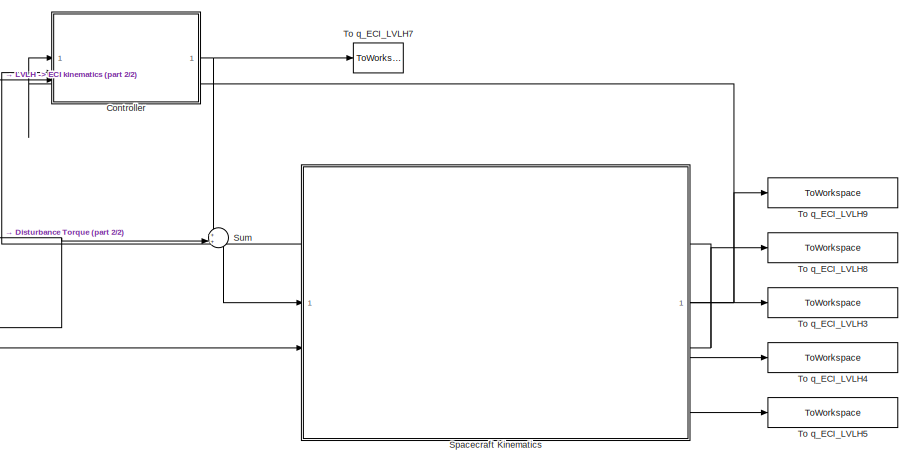
[diagram: root canvas - part 1/2, right side, full height]
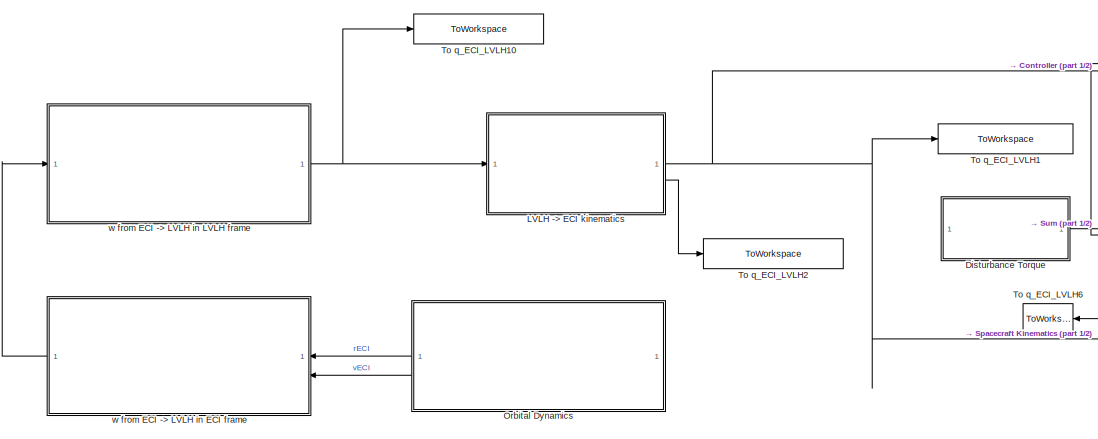
[diagram: root canvas - part 2/2, left side, full height]
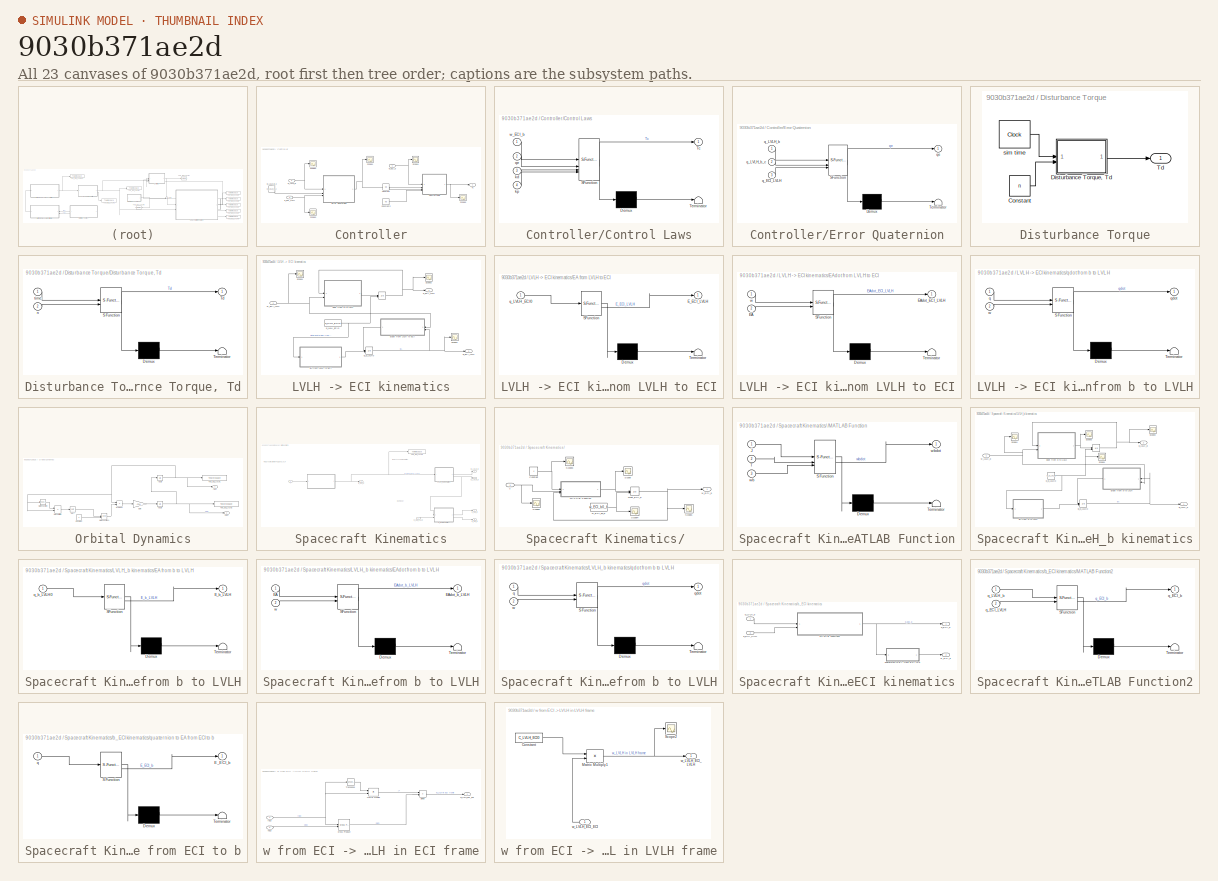
[diagram: thumbnail index - all 23 canvases of the model, root first then tree order]
MODEL slx_9030b371ae2d
KIND model
CONFIG AbsTol = auto
CONFIG EnableMultiTasking = off
CONFIG FixedStep = auto
CONFIG MaxStep = auto
CONFIG MinStep = auto
CONFIG RelTol = 1e-3
CONFIG SampleTimeConstraint = Unconstrained
CONFIG SolverName = VariableStepAuto
CONFIG StartTime = 0.0
CONFIG StopTime = 100
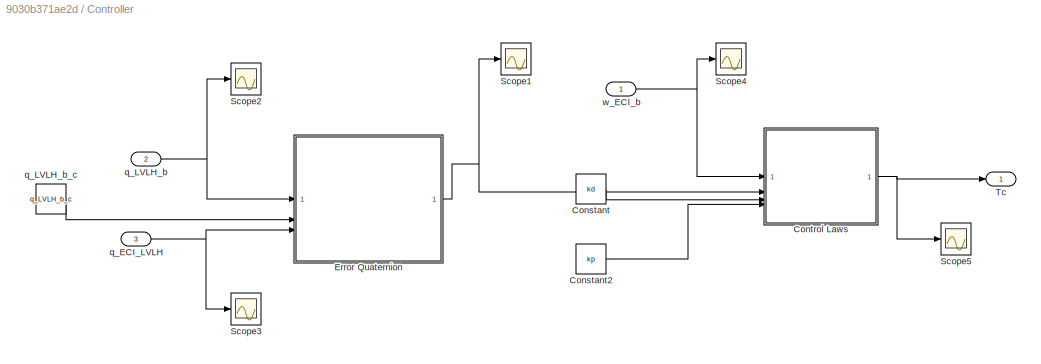
BLOCK [SubSystem] Controller
BLOCK [Constant] Controller/Constant
  Value = kd
BLOCK [Constant] Controller/Constant2
  Value = kp
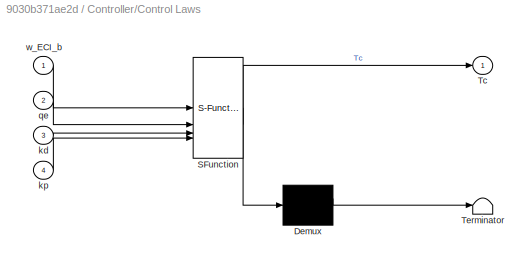
BLOCK [SubSystem] Controller/Control Laws
  ErrorFcn = Stateflow.Translate.translate
  PermitHierarchicalResolution = ExplicitOnly
  SFBlockType = MATLAB Function
  TreatAsAtomicUnit = on
BLOCK [Demux] Controller/Control Laws/ Demux 
  Outputs = 1
BLOCK [S-Function] Controller/Control Laws/ SFunction 
  EnableBusSupport = on
  FunctionName = sf_sfun
  PortCounts = [4 2]
  SFcnIsStateOwnerBlock = off
  SFunctionDeploymentMode = off
  Tag = Stateflow S-Function 10
BLOCK [Terminator] Controller/Control Laws/ Terminator 
BLOCK [Outport] Controller/Control Laws/Tc
BLOCK [Inport] Controller/Control Laws/kd
  Port = 3
BLOCK [Inport] Controller/Control Laws/kp
  Port = 4
BLOCK [Inport] Controller/Control Laws/qe
  Port = 2
BLOCK [Inport] Controller/Control Laws/w_ECI_b
BLOCK [SubSystem] Controller/Error Quaternion
  ErrorFcn = Stateflow.Translate.translate
  PermitHierarchicalResolution = ExplicitOnly
  SFBlockType = MATLAB Function
  TreatAsAtomicUnit = on
BLOCK [Demux] Controller/Error Quaternion/ Demux 
  Outputs = 1
BLOCK [S-Function] Controller/Error Quaternion/ SFunction 
  EnableBusSupport = on
  FunctionName = sf_sfun
  PortCounts = [3 2]
  SFcnIsStateOwnerBlock = off
  SFunctionDeploymentMode = off
  Tag = Stateflow S-Function 5
BLOCK [Terminator] Controller/Error Quaternion/ Terminator 
BLOCK [Inport] Controller/Error Quaternion/q_ECI_LVLH
  Port = 3
BLOCK [Inport] Controller/Error Quaternion/q_LVLH_b
BLOCK [Inport] Controller/Error Quaternion/q_LVLH_b_c
  Port = 2
BLOCK [Outport] Controller/Error Quaternion/qe
BLOCK [Scope] Controller/Scope1
  Floating = off
  NumInputPorts = 1
  ScopeSpecificationString = Simulink.scopes.TimeScopeBlockCfg('CurrentConfiguration', extmgr.ConfigurationSet(extmgr.Configuration('Core','General UI',true),extmgr.Configuration('Core','Source UI',true),extmgr.Configuration('Sources','WiredSimulink',true,'DataLoggingVariableName','ScopeData4'),extmgr.Configuration('Visuals','Time Domain',true,'SerializedDisplays',{struct('MinYLimReal','-0.67557','MaxYLimReal','1.18582','YLab...<+1630ch>
BLOCK [Scope] Controller/Scope2
  Floating = off
  NumInputPorts = 1
  ScopeSpecificationString = Simulink.scopes.TimeScopeBlockCfg('CurrentConfiguration', extmgr.ConfigurationSet(extmgr.Configuration('Core','General UI',true),extmgr.Configuration('Core','Source UI',true),extmgr.Configuration('Sources','WiredSimulink',true,'DataLoggingVariableName','ScopeData10'),extmgr.Configuration('Visuals','Time Domain',true,'SerializedDisplays',{struct('MinYLimReal','-0.18814','MaxYLimReal','1.13241','YLa...<+1580ch>
BLOCK [Scope] Controller/Scope3
  Floating = off
  NumInputPorts = 1
  ScopeSpecificationString = Simulink.scopes.TimeScopeBlockCfg('CurrentConfiguration', extmgr.ConfigurationSet(extmgr.Configuration('Core','General UI',true),extmgr.Configuration('Core','Source UI',true),extmgr.Configuration('Sources','WiredSimulink',true,'DataLoggingVariableName','ScopeData11'),extmgr.Configuration('Visuals','Time Domain',true,'SerializedDisplays',{struct('MinYLimReal','-0.62727','MaxYLimReal','0.62727','YLa...<+1691ch>
BLOCK [Scope] Controller/Scope4
  Floating = off
  NumInputPorts = 1
  ScopeSpecificationString = Simulink.scopes.TimeScopeBlockCfg('CurrentConfiguration', extmgr.ConfigurationSet(extmgr.Configuration('Core','General UI',true),extmgr.Configuration('Core','Source UI',true),extmgr.Configuration('Sources','WiredSimulink',true,'DataLoggingVariableName','ScopeData16'),extmgr.Configuration('Visuals','Time Domain',true,'SerializedDisplays',{struct('MinYLimReal','-0.31837','MaxYLimReal','0.2266','YLab...<+1582ch>
BLOCK [Scope] Controller/Scope5
  Floating = off
  NumInputPorts = 1
  ScopeSpecificationString = Simulink.scopes.TimeScopeBlockCfg('CurrentConfiguration', extmgr.ConfigurationSet(extmgr.Configuration('Core','General UI',true),extmgr.Configuration('Core','Source UI',true),extmgr.Configuration('Sources','WiredSimulink',true,'DataLoggingVariableName','ScopeData3'),extmgr.Configuration('Visuals','Time Domain',true,'SerializedDisplays',{struct('MinYLimReal','-577.09455','MaxYLimReal','273.18783','...<+1592ch>
BLOCK [Outport] Controller/Tc
BLOCK [Inport] Controller/q_ECI_LVLH
  Port = 3
BLOCK [Inport] Controller/q_LVLH_b
  Port = 2
BLOCK [Constant] Controller/q_LVLH_b_c
  Value = q_LVLH_b_c
BLOCK [Inport] Controller/w_ECI_b
BLOCK [SubSystem] Disturbance Torque
BLOCK [Constant] Disturbance Torque/Constant
  Value = n
BLOCK [SubSystem] Disturbance Torque/Disturbance Torque, Td
  ErrorFcn = Stateflow.Translate.translate
  LibrarySourceBlock = simulink/User-Defined\nFunctions/MATLAB Function
  PermitHierarchicalResolution = ExplicitOnly
  SFBlockType = MATLAB Function
  TreatAsAtomicUnit = on
BLOCK [Demux] Disturbance Torque/Disturbance Torque, Td/ Demux 
  Outputs = 1
BLOCK [S-Function] Disturbance Torque/Disturbance Torque, Td/ SFunction 
  EnableBusSupport = on
  FunctionName = sf_sfun
  PortCounts = [2 2]
  SFcnIsStateOwnerBlock = off
  SFunctionDeploymentMode = off
  Tag = Stateflow S-Function 4
BLOCK [Terminator] Disturbance Torque/Disturbance Torque, Td/ Terminator 
BLOCK [Outport] Disturbance Torque/Disturbance Torque, Td/Td
BLOCK [Inport] Disturbance Torque/Disturbance Torque, Td/n
  Port = 2
BLOCK [Inport] Disturbance Torque/Disturbance Torque, Td/time
BLOCK [Outport] Disturbance Torque/Td
BLOCK [Clock] Disturbance Torque/sim time
  DisplayTime = on
BLOCK [SubSystem] LVLH -> ECI kinematics
BLOCK [Integrator] LVLH -> ECI kinematics/ 
  InitialCondition = q_b_LVLH0
  InitialConditionSource = external
BLOCK [SubSystem] LVLH -> ECI kinematics/EA from LVLH to ECI
  ErrorFcn = Stateflow.Translate.translate
  LibrarySourceBlock = simulink/User-Defined\nFunctions/MATLAB Function
  PermitHierarchicalResolution = ExplicitOnly
  SFBlockType = MATLAB Function
  TreatAsAtomicUnit = on
BLOCK [Demux] LVLH -> ECI kinematics/EA from LVLH to ECI/ Demux 
  Outputs = 1
BLOCK [S-Function] LVLH -> ECI kinematics/EA from LVLH to ECI/ SFunction 
  EnableBusSupport = on
  FunctionName = sf_sfun
  PortCounts = [1 2]
  SFcnIsStateOwnerBlock = off
  SFunctionDeploymentMode = off
  Tag = Stateflow S-Function 3
BLOCK [Terminator] LVLH -> ECI kinematics/EA from LVLH to ECI/ Terminator 
BLOCK [Outport] LVLH -> ECI kinematics/EA from LVLH to ECI/E_ECI_LVLH
BLOCK [Inport] LVLH -> ECI kinematics/EA from LVLH to ECI/q_LVLH_ECI0
BLOCK [SubSystem] LVLH -> ECI kinematics/EAdot from LVLH to ECI
  ErrorFcn = Stateflow.Translate.translate
  LibrarySourceBlock = simulink/User-Defined\nFunctions/MATLAB Function
  PermitHierarchicalResolution = ExplicitOnly
  SFBlockType = MATLAB Function
  TreatAsAtomicUnit = on
BLOCK [Demux] LVLH -> ECI kinematics/EAdot from LVLH to ECI/ Demux 
  Outputs = 1
BLOCK [S-Function] LVLH -> ECI kinematics/EAdot from LVLH to ECI/ SFunction 
  EnableBusSupport = on
  FunctionName = sf_sfun
  PortCounts = [2 2]
  SFcnIsStateOwnerBlock = off
  SFunctionDeploymentMode = off
  Tag = Stateflow S-Function 7
BLOCK [Terminator] LVLH -> ECI kinematics/EAdot from LVLH to ECI/ Terminator 
BLOCK [Inport] LVLH -> ECI kinematics/EAdot from LVLH to ECI/EA
  Port = 2
BLOCK [Outport] LVLH -> ECI kinematics/EAdot from LVLH to ECI/EAdot_ECI_LVLH
BLOCK [Inport] LVLH -> ECI kinematics/EAdot from LVLH to ECI/w
BLOCK [Outport] LVLH -> ECI kinematics/E_ECI_LVLH
  Port = 2
BLOCK [Integrator] LVLH -> ECI kinematics/E_b_LVLH0
  InitialCondition = E_b_LVLH0
  InitialConditionSource = external
BLOCK [Scope] LVLH -> ECI kinematics/Scope1
  Floating = off
  NumInputPorts = 1
  ScopeSpecificationString = Simulink.scopes.TimeScopeBlockCfg('CurrentConfiguration', extmgr.ConfigurationSet(extmgr.Configuration('Core','General UI',true),extmgr.Configuration('Core','Source UI',true),extmgr.Configuration('Sources','WiredSimulink',true,'DataLoggingVariableName','ScopeData2'),extmgr.Configuration('Visuals','Time Domain',true,'SerializedDisplays',{struct('MinYLimReal','-0.000082','MaxYLimReal','0.000009','YL...<+1438ch>
BLOCK [Scope] LVLH -> ECI kinematics/Scope2
  Floating = off
  NumInputPorts = 1
  ScopeSpecificationString = Simulink.scopes.TimeScopeBlockCfg('CurrentConfiguration', extmgr.ConfigurationSet(extmgr.Configuration('Core','General UI',true),extmgr.Configuration('Core','Source UI',true),extmgr.Configuration('Sources','WiredSimulink',true,'DataLoggingVariableName','ScopeData2'),extmgr.Configuration('Visuals','Time Domain',true,'SerializedDisplays',{struct('MinYLimReal','-0.70529','MaxYLimReal','0.70529','YLab...<+1434ch>
BLOCK [Scope] LVLH -> ECI kinematics/Scope3
  Floating = off
  NumInputPorts = 1
  ScopeSpecificationString = Simulink.scopes.TimeScopeBlockCfg('CurrentConfiguration', extmgr.ConfigurationSet(extmgr.Configuration('Core','General UI',true),extmgr.Configuration('Core','Source UI',true),extmgr.Configuration('Sources','WiredSimulink',true,'DataLoggingVariableName','ScopeData3'),extmgr.Configuration('Visuals','Time Domain',true,'SerializedDisplays',{struct('MinYLimReal','-1.99812','MaxYLimReal','2.27513','YLab...<+1406ch>
BLOCK [Outport] LVLH -> ECI kinematics/q_ECI_LVLH
BLOCK [Constant] LVLH -> ECI kinematics/q_LVLH_ECI0
  Value = q_LVLH_ECI0
BLOCK [SubSystem] LVLH -> ECI kinematics/qdot from b to LVLH
  ErrorFcn = Stateflow.Translate.translate
  LibrarySourceBlock = simulink/User-Defined\nFunctions/MATLAB Function
  PermitHierarchicalResolution = ExplicitOnly
  SFBlockType = MATLAB Function
  TreatAsAtomicUnit = on
BLOCK [Demux] LVLH -> ECI kinematics/qdot from b to LVLH/ Demux 
  Outputs = 1
BLOCK [S-Function] LVLH -> ECI kinematics/qdot from b to LVLH/ SFunction 
  EnableBusSupport = on
  FunctionName = sf_sfun
  PortCounts = [2 2]
  SFcnIsStateOwnerBlock = off
  SFunctionDeploymentMode = off
  Tag = Stateflow S-Function 8
BLOCK [Terminator] LVLH -> ECI kinematics/qdot from b to LVLH/ Terminator 
BLOCK [Inport] LVLH -> ECI kinematics/qdot from b to LVLH/q
BLOCK [Outport] LVLH -> ECI kinematics/qdot from b to LVLH/qdot
BLOCK [Inport] LVLH -> ECI kinematics/qdot from b to LVLH/w
  Port = 2
BLOCK [Inport] LVLH -> ECI kinematics/w_ECI_LVLH
BLOCK [SubSystem] Orbital Dynamics
BLOCK [Constant] Orbital Dynamics/Constant
  Value = 3
BLOCK [Gain] Orbital Dynamics/Gain
  Gain = -mu
BLOCK [Math] Orbital Dynamics/Math Function
  Operator = transpose
BLOCK [Math] Orbital Dynamics/Math Function1
  Operator = pow
BLOCK [Product] Orbital Dynamics/MatrixMultiply
  Multiplication = Matrix(*)
BLOCK [Product] Orbital Dynamics/Product
  Inputs = */
BLOCK [Sqrt] Orbital Dynamics/Sqrt
BLOCK [ToWorkspace] Orbital Dynamics/To q_ECI_LVLH1
  FixptAsFi = on
  MaxDataPoints = inf
  SampleTime = -1
  SaveFormat = Timeseries
  VariableName = rECI
BLOCK [ToWorkspace] Orbital Dynamics/To q_ECI_LVLH2
  FixptAsFi = on
  MaxDataPoints = inf
  SampleTime = -1
  SaveFormat = Timeseries
  VariableName = vECI
BLOCK [Outport] Orbital Dynamics/rECI
BLOCK [Integrator] Orbital Dynamics/rECI0
  InitialCondition = rECI0
BLOCK [Outport] Orbital Dynamics/vECI
  Port = 2
BLOCK [Integrator] Orbital Dynamics/vECI0
  InitialCondition = vECI0
BLOCK [SubSystem] Spacecraft Kinematics
BLOCK [SubSystem] Spacecraft Kinematics/ 
BLOCK [Constant] Spacecraft Kinematics/ /Constant
  Value = J
BLOCK [SubSystem] Spacecraft Kinematics/ /MATLAB Function
  ErrorFcn = Stateflow.Translate.translate
  LibrarySourceBlock = simulink/User-Defined\nFunctions/MATLAB Function
  PermitHierarchicalResolution = ExplicitOnly
  SFBlockType = MATLAB Function
  TreatAsAtomicUnit = on
BLOCK [Demux] Spacecraft Kinematics/ /MATLAB Function/ Demux 
  Outputs = 1
BLOCK [S-Function] Spacecraft Kinematics/ /MATLAB Function/ SFunction 
  EnableBusSupport = on
  FunctionName = sf_sfun
  PortCounts = [3 2]
  SFcnIsStateOwnerBlock = off
  SFunctionDeploymentMode = off
  Tag = Stateflow S-Function 15
BLOCK [Terminator] Spacecraft Kinematics/ /MATLAB Function/ Terminator 
BLOCK [Inport] Spacecraft Kinematics/ /MATLAB Function/J
BLOCK [Inport] Spacecraft Kinematics/ /MATLAB Function/T
  Port = 2
BLOCK [Inport] Spacecraft Kinematics/ /MATLAB Function/wb
  Port = 3
BLOCK [Outport] Spacecraft Kinematics/ /MATLAB Function/wbdot
BLOCK [Scope] Spacecraft Kinematics/ /Scope
  Floating = off
  NumInputPorts = 1
  ScopeSpecificationString = Simulink.scopes.TimeScopeBlockCfg('CurrentConfiguration', extmgr.ConfigurationSet(extmgr.Configuration('Core','General UI',true),extmgr.Configuration('Core','Source UI',true),extmgr.Configuration('Sources','WiredSimulink',true,'DataLoggingVariableName','ScopeData17'),extmgr.Configuration('Visuals','Time Domain',true,'SerializedDisplays',{struct('MinYLimReal','-0.05367','MaxYLimReal','0.02199','YLa...<+1446ch>
BLOCK [Scope] Spacecraft Kinematics/ /Scope1
  Floating = off
  NumInputPorts = 1
  ScopeSpecificationString = Simulink.scopes.TimeScopeBlockCfg('CurrentConfiguration', extmgr.ConfigurationSet(extmgr.Configuration('Core','General UI',true),extmgr.Configuration('Core','Source UI',true),extmgr.Configuration('Sources','WiredSimulink',true,'DataLoggingVariableName','ScopeData18'),extmgr.Configuration('Visuals','Time Domain',true,'SerializedDisplays',{struct('MinYLimReal','-0.15173','MaxYLimReal','0.02972','YLa...<+1431ch>
BLOCK [Scope] Spacecraft Kinematics/ /Scope2
  Floating = off
  NumInputPorts = 1
  ScopeSpecificationString = Simulink.scopes.TimeScopeBlockCfg('CurrentConfiguration', extmgr.ConfigurationSet(extmgr.Configuration('Core','General UI',true),extmgr.Configuration('Core','Source UI',true),extmgr.Configuration('Sources','WiredSimulink',true,'DataLoggingVariableName','ScopeData9'),extmgr.Configuration('Visuals','Time Domain',true,'SerializedDisplays',{struct('MinYLimReal','-577.09455','MaxYLimReal','273.18783','...<+1388ch>
BLOCK [Scope] Spacecraft Kinematics/ /Scope3
  Floating = off
  NumInputPorts = 1
  ScopeSpecificationString = Simulink.scopes.TimeScopeBlockCfg('CurrentConfiguration', extmgr.ConfigurationSet(extmgr.Configuration('Core','General UI',true),extmgr.Configuration('Core','Source UI',true),extmgr.Configuration('Sources','WiredSimulink',true,'DataLoggingVariableName','ScopeData19'),extmgr.Configuration('Visuals','Time Domain',true,'SerializedDisplays',{struct('MinYLimReal','-1334.375','MaxYLimReal','12009.375','...<+1840ch>
BLOCK [Scope] Spacecraft Kinematics/ /Scope4
  Floating = off
  NumInputPorts = 1
  ScopeSpecificationString = Simulink.scopes.TimeScopeBlockCfg('CurrentConfiguration', extmgr.ConfigurationSet(extmgr.Configuration('Core','General UI',true),extmgr.Configuration('Core','Source UI',true),extmgr.Configuration('Sources','WiredSimulink',true,'DataLoggingVariableName','ScopeData20'),extmgr.Configuration('Visuals','Time Domain',true,'SerializedDisplays',{struct('MinYLimReal','-0.00009','MaxYLimReal','0.00004','YLa...<+1538ch>
BLOCK [Inport] Spacecraft Kinematics/ /T
BLOCK [Outport] Spacecraft Kinematics/ /w_ECI_b
  PortDimensions = [3 1]
BLOCK [Constant] Spacecraft Kinematics/ /w_ECI_b0_b
  Value = w_ECI_b0_b
BLOCK [Integrator] Spacecraft Kinematics/ /wdot_ECI_b
  InitialCondition = w_b_ECI0_b
  InitialConditionSource = external
BLOCK [Outport] Spacecraft Kinematics/E_ECI_b
  Port = 3
BLOCK [Outport] Spacecraft Kinematics/E_LVLH_b
  Port = 5
BLOCK [SubSystem] Spacecraft Kinematics/LVLH_b kinematics
BLOCK [Integrator] Spacecraft Kinematics/LVLH_b kinematics/ 
  InitialCondition = q_b_LVLH0
  InitialConditionSource = external
BLOCK [SubSystem] Spacecraft Kinematics/LVLH_b kinematics/EA from b to LVLH
  ErrorFcn = Stateflow.Translate.translate
  LibrarySourceBlock = simulink/User-Defined\nFunctions/MATLAB Function
  PermitHierarchicalResolution = ExplicitOnly
  SFBlockType = MATLAB Function
  TreatAsAtomicUnit = on
BLOCK [Demux] Spacecraft Kinematics/LVLH_b kinematics/EA from b to LVLH/ Demux 
  Outputs = 1
BLOCK [S-Function] Spacecraft Kinematics/LVLH_b kinematics/EA from b to LVLH/ SFunction 
  EnableBusSupport = on
  FunctionName = sf_sfun
  PortCounts = [1 2]
  SFcnIsStateOwnerBlock = off
  SFunctionDeploymentMode = off
  Tag = Stateflow S-Function 9
BLOCK [Terminator] Spacecraft Kinematics/LVLH_b kinematics/EA from b to LVLH/ Terminator 
BLOCK [Outport] Spacecraft Kinematics/LVLH_b kinematics/EA from b to LVLH/E_b_LVLH
BLOCK [Inport] Spacecraft Kinematics/LVLH_b kinematics/EA from b to LVLH/q_b_LVLH0
BLOCK [SubSystem] Spacecraft Kinematics/LVLH_b kinematics/EAdot from b to LVLH
  ErrorFcn = Stateflow.Translate.translate
  LibrarySourceBlock = simulink/User-Defined\nFunctions/MATLAB Function
  PermitHierarchicalResolution = ExplicitOnly
  SFBlockType = MATLAB Function
  TreatAsAtomicUnit = on
BLOCK [Demux] Spacecraft Kinematics/LVLH_b kinematics/EAdot from b to LVLH/ Demux 
  Outputs = 1
BLOCK [S-Function] Spacecraft Kinematics/LVLH_b kinematics/EAdot from b to LVLH/ SFunction 
  EnableBusSupport = on
  FunctionName = sf_sfun
  PortCounts = [2 2]
  SFcnIsStateOwnerBlock = off
  SFunctionDeploymentMode = off
  Tag = Stateflow S-Function 11
BLOCK [Terminator] Spacecraft Kinematics/LVLH_b kinematics/EAdot from b to LVLH/ Terminator 
BLOCK [Inport] Spacecraft Kinematics/LVLH_b kinematics/EAdot from b to LVLH/EA
BLOCK [Outport] Spacecraft Kinematics/LVLH_b kinematics/EAdot from b to LVLH/EAdot_b_LVLH
BLOCK [Inport] Spacecraft Kinematics/LVLH_b kinematics/EAdot from b to LVLH/w
  Port = 2
BLOCK [Outport] Spacecraft Kinematics/LVLH_b kinematics/E_LVLH_b
BLOCK [Integrator] Spacecraft Kinematics/LVLH_b kinematics/E_b_LVLH0
  InitialCondition = E_b_LVLH0
  InitialConditionSource = external
BLOCK [Scope] Spacecraft Kinematics/LVLH_b kinematics/Scope1
  Floating = off
  NumInputPorts = 1
  ScopeSpecificationString = Simulink.scopes.TimeScopeBlockCfg('CurrentConfiguration', extmgr.ConfigurationSet(extmgr.Configuration('Core','General UI',true),extmgr.Configuration('Core','Source UI',true),extmgr.Configuration('Sources','WiredSimulink',true,'DataLoggingVariableName','ScopeData13'),extmgr.Configuration('Visuals','Time Domain',true,'SerializedDisplays',{struct('MinYLimReal','0.4','MaxYLimReal','0.6','YLabelReal',...<+1632ch>
BLOCK [Scope] Spacecraft Kinematics/LVLH_b kinematics/Scope2
  Floating = off
  NumInputPorts = 1
  ScopeSpecificationString = Simulink.scopes.TimeScopeBlockCfg('CurrentConfiguration', extmgr.ConfigurationSet(extmgr.Configuration('Core','General UI',true),extmgr.Configuration('Core','Source UI',true),extmgr.Configuration('Sources','WiredSimulink',true,'DataLoggingVariableName','ScopeData12'),extmgr.Configuration('Visuals','Time Domain',true,'SerializedDisplays',{struct('MinYLimReal','-0.18814','MaxYLimReal','1.13241','YLa...<+1636ch>
BLOCK [Scope] Spacecraft Kinematics/LVLH_b kinematics/Scope3
  Floating = off
  NumInputPorts = 1
  ScopeSpecificationString = Simulink.scopes.TimeScopeBlockCfg('CurrentConfiguration', extmgr.ConfigurationSet(extmgr.Configuration('Core','General UI',true),extmgr.Configuration('Core','Source UI',true),extmgr.Configuration('Sources','WiredSimulink',true,'DataLoggingVariableName','ScopeData14'),extmgr.Configuration('Visuals','Time Domain',true,'SerializedDisplays',{struct('MinYLimReal','-0.000031','MaxYLimReal','0.000033','Y...<+1735ch>
BLOCK [Scope] Spacecraft Kinematics/LVLH_b kinematics/Scope4
  Floating = off
  NumInputPorts = 1
  ScopeSpecificationString = Simulink.scopes.TimeScopeBlockCfg('CurrentConfiguration', extmgr.ConfigurationSet(extmgr.Configuration('Core','General UI',true),extmgr.Configuration('Core','Source UI',true),extmgr.Configuration('Sources','WiredSimulink',true,'DataLoggingVariableName','ScopeData15'),extmgr.Configuration('Visuals','Time Domain',true,'SerializedDisplays',{struct('MinYLimReal','-0.00009','MaxYLimReal','0.00004','YLa...<+1651ch>
BLOCK [Outport] Spacecraft Kinematics/LVLH_b kinematics/q_LVLH_b
  Port = 2
BLOCK [Constant] Spacecraft Kinematics/LVLH_b kinematics/q_b_LVLH0
  Value = q_b_LVLH0
BLOCK [SubSystem] Spacecraft Kinematics/LVLH_b kinematics/qdot from b to LVLH
  ErrorFcn = Stateflow.Translate.translate
  LibrarySourceBlock = simulink/User-Defined\nFunctions/MATLAB Function
  PermitHierarchicalResolution = ExplicitOnly
  SFBlockType = MATLAB Function
  TreatAsAtomicUnit = on
BLOCK [Demux] Spacecraft Kinematics/LVLH_b kinematics/qdot from b to LVLH/ Demux 
  Outputs = 1
BLOCK [S-Function] Spacecraft Kinematics/LVLH_b kinematics/qdot from b to LVLH/ SFunction 
  EnableBusSupport = on
  FunctionName = sf_sfun
  PortCounts = [2 2]
  SFcnIsStateOwnerBlock = off
  SFunctionDeploymentMode = off
  Tag = Stateflow S-Function 13
BLOCK [Terminator] Spacecraft Kinematics/LVLH_b kinematics/qdot from b to LVLH/ Terminator 
BLOCK [Inport] Spacecraft Kinematics/LVLH_b kinematics/qdot from b to LVLH/q
BLOCK [Outport] Spacecraft Kinematics/LVLH_b kinematics/qdot from b to LVLH/qdot
BLOCK [Inport] Spacecraft Kinematics/LVLH_b kinematics/qdot from b to LVLH/w
  Port = 2
BLOCK [Inport] Spacecraft Kinematics/LVLH_b kinematics/w_LVLH_b
BLOCK [Inport] Spacecraft Kinematics/T
BLOCK [ToWorkspace] Spacecraft Kinematics/To q_ECI_LVLH9
  FixptAsFi = on
  MaxDataPoints = inf
  SampleTime = -1
  SaveFormat = Timeseries
  VariableName = w_LVLH_b
BLOCK [SubSystem] Spacecraft Kinematics/b_ECI kinematics
BLOCK [Outport] Spacecraft Kinematics/b_ECI kinematics/E_ECI_b
  Port = 2
BLOCK [SubSystem] Spacecraft Kinematics/b_ECI kinematics/MATLAB Function2
  ErrorFcn = Stateflow.Translate.translate
  PermitHierarchicalResolution = ExplicitOnly
  SFBlockType = MATLAB Function
  TreatAsAtomicUnit = on
BLOCK [Demux] Spacecraft Kinematics/b_ECI kinematics/MATLAB Function2/ Demux 
  Outputs = 1
BLOCK [S-Function] Spacecraft Kinematics/b_ECI kinematics/MATLAB Function2/ SFunction 
  EnableBusSupport = on
  FunctionName = sf_sfun
  PortCounts = [2 2]
  SFcnIsStateOwnerBlock = off
  SFunctionDeploymentMode = off
  Tag = Stateflow S-Function 14
BLOCK [Terminator] Spacecraft Kinematics/b_ECI kinematics/MATLAB Function2/ Terminator 
BLOCK [Inport] Spacecraft Kinematics/b_ECI kinematics/MATLAB Function2/q_ECI_LVLH
  Port = 2
BLOCK [Outport] Spacecraft Kinematics/b_ECI kinematics/MATLAB Function2/q_ECI_b
BLOCK [Inport] Spacecraft Kinematics/b_ECI kinematics/MATLAB Function2/q_LVLH_b
BLOCK [Inport] Spacecraft Kinematics/b_ECI kinematics/q_ECI_LVLH
  Port = 2
BLOCK [Outport] Spacecraft Kinematics/b_ECI kinematics/q_ECI_b
BLOCK [Inport] Spacecraft Kinematics/b_ECI kinematics/q_LVLH_b
BLOCK [SubSystem] Spacecraft Kinematics/b_ECI kinematics/quaternion to EA from ECI to b
  ErrorFcn = Stateflow.Translate.translate
  LibrarySourceBlock = simulink/User-Defined\nFunctions/MATLAB Function
  PermitHierarchicalResolution = ExplicitOnly
  SFBlockType = MATLAB Function
  TreatAsAtomicUnit = on
BLOCK [Demux] Spacecraft Kinematics/b_ECI kinematics/quaternion to EA from ECI to b/ Demux 
  Outputs = 1
BLOCK [S-Function] Spacecraft Kinematics/b_ECI kinematics/quaternion to EA from ECI to b/ SFunction 
  EnableBusSupport = on
  FunctionName = sf_sfun
  PortCounts = [1 2]
  SFcnIsStateOwnerBlock = off
  SFunctionDeploymentMode = off
  Tag = Stateflow S-Function 2
BLOCK [Terminator] Spacecraft Kinematics/b_ECI kinematics/quaternion to EA from ECI to b/ Terminator 
BLOCK [Outport] Spacecraft Kinematics/b_ECI kinematics/quaternion to EA from ECI to b/E_ECI_b
BLOCK [Inport] Spacecraft Kinematics/b_ECI kinematics/quaternion to EA from ECI to b/q
BLOCK [Inport] Spacecraft Kinematics/q_ECI_LVLH
  Port = 2
BLOCK [Outport] Spacecraft Kinematics/q_ECI_b
  Port = 4
BLOCK [Outport] Spacecraft Kinematics/q_LVLH_b
  Port = 2
BLOCK [Outport] Spacecraft Kinematics/w_ECI_b
  PortDimensions = [3 1]
BLOCK [Sum] Sum
  Inputs = ++|
BLOCK [ToWorkspace] To q_ECI_LVLH1
  FixptAsFi = on
  MaxDataPoints = inf
  SampleTime = -1
  SaveFormat = Timeseries
  VariableName = q_ECI_LVLH_LVLH
BLOCK [ToWorkspace] To q_ECI_LVLH10
  FixptAsFi = on
  MaxDataPoints = inf
  SampleTime = -1
  SaveFormat = Timeseries
  VariableName = w_LVLH_ECI_LVLH
BLOCK [ToWorkspace] To q_ECI_LVLH2
  FixptAsFi = on
  MaxDataPoints = inf
  SampleTime = -1
  SaveFormat = Timeseries
  VariableName = E_ECI_LVLH_LVLH
BLOCK [ToWorkspace] To q_ECI_LVLH3
  FixptAsFi = on
  MaxDataPoints = inf
  SampleTime = -1
  SaveFormat = Timeseries
  VariableName = E_ECI_b
BLOCK [ToWorkspace] To q_ECI_LVLH4
  FixptAsFi = on
  MaxDataPoints = inf
  SampleTime = -1
  SaveFormat = Timeseries
  VariableName = q_ECI_b
BLOCK [ToWorkspace] To q_ECI_LVLH5
  FixptAsFi = on
  MaxDataPoints = inf
  SampleTime = -1
  SaveFormat = Timeseries
  VariableName = E_LVLH_b
BLOCK [ToWorkspace] To q_ECI_LVLH6
  FixptAsFi = on
  MaxDataPoints = inf
  SampleTime = -1
  SaveFormat = Timeseries
  VariableName = Td
BLOCK [ToWorkspace] To q_ECI_LVLH7
  FixptAsFi = on
  MaxDataPoints = inf
  SampleTime = -1
  SaveFormat = Timeseries
  VariableName = Tc
BLOCK [ToWorkspace] To q_ECI_LVLH8
  FixptAsFi = on
  MaxDataPoints = inf
  SampleTime = -1
  SaveFormat = Timeseries
  VariableName = q_LVLH_b
BLOCK [ToWorkspace] To q_ECI_LVLH9
  FixptAsFi = on
  MaxDataPoints = inf
  SampleTime = -1
  SaveFormat = Timeseries
  VariableName = w_ECI_b
BLOCK [SubSystem] w from ECI -> LVLH in ECI frame
BLOCK [Reference] w from ECI -> LVLH in ECI frame/Cross Product  REF=matrix_library/Cross Product
  SourceBlock = matrix_library/Cross Product
  SourceType = CrossProduct
BLOCK [Product] w from ECI -> LVLH in ECI frame/Divide
  Inputs = /*
BLOCK [Product] w from ECI -> LVLH in ECI frame/Matrix Multiply
  Multiplication = Matrix(*)
BLOCK [Math] w from ECI -> LVLH in ECI frame/Transpose
  Operator = transpose
BLOCK [Inport] w from ECI -> LVLH in ECI frame/rECI
BLOCK [Inport] w from ECI -> LVLH in ECI frame/vECI
  Port = 2
BLOCK [Outport] w from ECI -> LVLH in ECI frame/w_LVLH_ECI_ECI
BLOCK [SubSystem] w from ECI -> LVLH in LVLH frame
BLOCK [Constant] w from ECI -> LVLH in LVLH frame/Constant
  Value = C_LVLH_ECI0
BLOCK [Product] w from ECI -> LVLH in LVLH frame/Matrix Multiply1
  Multiplication = Matrix(*)
BLOCK [Scope] w from ECI -> LVLH in LVLH frame/Scope2
  Floating = off
  NumInputPorts = 1
  ScopeSpecificationString = Simulink.scopes.TimeScopeBlockCfg('CurrentConfiguration', extmgr.ConfigurationSet(extmgr.Configuration('Core','General UI',true),extmgr.Configuration('Core','Source UI',true),extmgr.Configuration('Sources','WiredSimulink',true,'DataLoggingVariableName','ScopeData4'),extmgr.Configuration('Visuals','Time Domain',true,'SerializedDisplays',{struct('MinYLimReal','-0.000082','MaxYLimReal','0.000009','YL...<+1493ch>
BLOCK [Inport] w from ECI -> LVLH in LVLH frame/w_LVLH_ECI_ECI
BLOCK [Outport] w from ECI -> LVLH in LVLH frame/w_LVLH_ECI_LVLH
ANNOTATION Spacecraft Kinematics: Body - > LVLH Kinematics
ANNOTATION Spacecraft Kinematics: ECI -> Body
ANNOTATION Spacecraft Kinematics: RB Dynamics from b -> ECI and LVLH
LINE Controller/Constant2:1 -> Controller/Control Laws:4
LINE Controller/Constant:1 -> Controller/Control Laws:3
NET Controller/Control Laws:1 -> Controller/Scope5:1, Controller/Tc:1
NET Controller/Error Quaternion:1 -> Controller/Control Laws:2, Controller/Scope1:1
NET Controller/q_ECI_LVLH:1 -> Controller/Error Quaternion:3, Controller/Scope3:1
NET Controller/q_LVLH_b:1 -> Controller/Error Quaternion:1, Controller/Scope2:1
LINE Controller/q_LVLH_b_c:1 -> Controller/Error Quaternion:2
NET Controller/w_ECI_b:1 -> Controller/Control Laws:1, Controller/Scope4:1
NET Controller:1 -> Sum:1, To q_ECI_LVLH7:1
LINE Disturbance Torque/Constant:1 -> Disturbance Torque/Disturbance Torque, Td:2
LINE Disturbance Torque/Disturbance Torque, Td:1 -> Disturbance Torque/Td:1
LINE Disturbance Torque/sim time:1 -> Disturbance Torque/Disturbance Torque, Td:1
NET Disturbance Torque:1 -> Sum:2, To q_ECI_LVLH6:1
NET LVLH -> ECI kinematics/ :1 -> LVLH -> ECI kinematics/Scope2:1, LVLH -> ECI kinematics/q_ECI_LVLH:1, LVLH -> ECI kinematics/qdot from b to LVLH:1
LINE LVLH -> ECI kinematics/EA from LVLH to ECI:1 -> LVLH -> ECI kinematics/E_b_LVLH0:2
LINE LVLH -> ECI kinematics/EAdot from LVLH to ECI:1 -> LVLH -> ECI kinematics/E_b_LVLH0:1
NET LVLH -> ECI kinematics/E_b_LVLH0:1 -> LVLH -> ECI kinematics/EAdot from LVLH to ECI:2, LVLH -> ECI kinematics/E_ECI_LVLH:1, LVLH -> ECI kinematics/Scope3:1
NET LVLH -> ECI kinematics/q_LVLH_ECI0:1 -> LVLH -> ECI kinematics/ :2, LVLH -> ECI kinematics/EA from LVLH to ECI:1
LINE LVLH -> ECI kinematics/qdot from b to LVLH:1 -> LVLH -> ECI kinematics/ :1
NET LVLH -> ECI kinematics/w_ECI_LVLH:1 -> LVLH -> ECI kinematics/EAdot from LVLH to ECI:1, LVLH -> ECI kinematics/Scope1:1, LVLH -> ECI kinematics/qdot from b to LVLH:2
NET LVLH -> ECI kinematics:1 -> Controller:3, Spacecraft Kinematics:2, To q_ECI_LVLH1:1
LINE LVLH -> ECI kinematics:2 -> To q_ECI_LVLH2:1
LINE Orbital Dynamics/Constant:1 -> Orbital Dynamics/Math Function1:2
LINE Orbital Dynamics/Gain:1 -> Orbital Dynamics/vECI0:1
LINE Orbital Dynamics/Math Function1:1 -> Orbital Dynamics/Product:2
LINE Orbital Dynamics/Math Function:1 -> Orbital Dynamics/MatrixMultiply:1
LINE Orbital Dynamics/MatrixMultiply:1 -> Orbital Dynamics/Sqrt:1
LINE Orbital Dynamics/Product:1 -> Orbital Dynamics/Gain:1
LINE Orbital Dynamics/Sqrt:1 -> Orbital Dynamics/Math Function1:1
NET Orbital Dynamics/rECI0:1 -> Orbital Dynamics/Math Function:1, Orbital Dynamics/MatrixMultiply:2, Orbital Dynamics/Product:1, Orbital Dynamics/To q_ECI_LVLH1:1, Orbital Dynamics/rECI:1
NET Orbital Dynamics/vECI0:1 -> Orbital Dynamics/To q_ECI_LVLH2:1, Orbital Dynamics/rECI0:1, Orbital Dynamics/vECI:1
LINE Orbital Dynamics:1 -> w from ECI -> LVLH in ECI frame:1
LINE Orbital Dynamics:2 -> w from ECI -> LVLH in ECI frame:2
NET Spacecraft Kinematics/ /Constant:1 -> Spacecraft Kinematics/ /MATLAB Function:1, Spacecraft Kinematics/ /Scope3:1
NET Spacecraft Kinematics/ /MATLAB Function:1 -> Spacecraft Kinematics/ /Scope:1, Spacecraft Kinematics/ /wdot_ECI_b:1
NET Spacecraft Kinematics/ /T:1 -> Spacecraft Kinematics/ /MATLAB Function:2, Spacecraft Kinematics/ /Scope2:1
NET Spacecraft Kinematics/ /w_ECI_b0_b:1 -> Spacecraft Kinematics/ /Scope4:1, Spacecraft Kinematics/ /wdot_ECI_b:2
NET Spacecraft Kinematics/ /wdot_ECI_b:1 -> Spacecraft Kinematics/ /MATLAB Function:3, Spacecraft Kinematics/ /Scope1:1, Spacecraft Kinematics/ /w_ECI_b:1
NET Spacecraft Kinematics/ :1 -> Spacecraft Kinematics/LVLH_b kinematics:1, Spacecraft Kinematics/To q_ECI_LVLH9:1, Spacecraft Kinematics/w_ECI_b:1
NET Spacecraft Kinematics/LVLH_b kinematics/ :1 -> Spacecraft Kinematics/LVLH_b kinematics/Scope2:1, Spacecraft Kinematics/LVLH_b kinematics/q_LVLH_b:1, Spacecraft Kinematics/LVLH_b kinematics/qdot from b to LVLH:1
LINE Spacecraft Kinematics/LVLH_b kinematics/EA from b to LVLH:1 -> Spacecraft Kinematics/LVLH_b kinematics/E_b_LVLH0:2
LINE Spacecraft Kinematics/LVLH_b kinematics/EAdot from b to LVLH:1 -> Spacecraft Kinematics/LVLH_b kinematics/E_b_LVLH0:1
NET Spacecraft Kinematics/LVLH_b kinematics/E_b_LVLH0:1 -> Spacecraft Kinematics/LVLH_b kinematics/EAdot from b to LVLH:1, Spacecraft Kinematics/LVLH_b kinematics/E_LVLH_b:1
NET Spacecraft Kinematics/LVLH_b kinematics/q_b_LVLH0:1 -> Spacecraft Kinematics/LVLH_b kinematics/ :2, Spacecraft Kinematics/LVLH_b kinematics/EA from b to LVLH:1, Spacecraft Kinematics/LVLH_b kinematics/Scope1:1
NET Spacecraft Kinematics/LVLH_b kinematics/qdot from b to LVLH:1 -> Spacecraft Kinematics/LVLH_b kinematics/ :1, Spacecraft Kinematics/LVLH_b kinematics/Scope3:1
NET Spacecraft Kinematics/LVLH_b kinematics/w_LVLH_b:1 -> Spacecraft Kinematics/LVLH_b kinematics/EAdot from b to LVLH:2, Spacecraft Kinematics/LVLH_b kinematics/Scope4:1, Spacecraft Kinematics/LVLH_b kinematics/qdot from b to LVLH:2
LINE Spacecraft Kinematics/LVLH_b kinematics:1 -> Spacecraft Kinematics/E_LVLH_b:1
NET Spacecraft Kinematics/LVLH_b kinematics:2 -> Spacecraft Kinematics/b_ECI kinematics:1, Spacecraft Kinematics/q_LVLH_b:1
LINE Spacecraft Kinematics/T:1 -> Spacecraft Kinematics/ :1
NET Spacecraft Kinematics/b_ECI kinematics/MATLAB Function2:1 -> Spacecraft Kinematics/b_ECI kinematics/q_ECI_b:1, Spacecraft Kinematics/b_ECI kinematics/quaternion to EA from ECI to b:1
LINE Spacecraft Kinematics/b_ECI kinematics/q_ECI_LVLH:1 -> Spacecraft Kinematics/b_ECI kinematics/MATLAB Function2:2
LINE Spacecraft Kinematics/b_ECI kinematics/q_LVLH_b:1 -> Spacecraft Kinematics/b_ECI kinematics/MATLAB Function2:1
LINE Spacecraft Kinematics/b_ECI kinematics/quaternion to EA from ECI to b:1 -> Spacecraft Kinematics/b_ECI kinematics/E_ECI_b:1
LINE Spacecraft Kinematics/b_ECI kinematics:1 -> Spacecraft Kinematics/q_ECI_b:1
LINE Spacecraft Kinematics/b_ECI kinematics:2 -> Spacecraft Kinematics/E_ECI_b:1
LINE Spacecraft Kinematics/q_ECI_LVLH:1 -> Spacecraft Kinematics/b_ECI kinematics:2
NET Spacecraft Kinematics:1 -> Controller:1, To q_ECI_LVLH9:1
NET Spacecraft Kinematics:2 -> Controller:2, To q_ECI_LVLH8:1
LINE Spacecraft Kinematics:3 -> To q_ECI_LVLH3:1
LINE Spacecraft Kinematics:4 -> To q_ECI_LVLH4:1
LINE Spacecraft Kinematics:5 -> To q_ECI_LVLH5:1
LINE Sum:1 -> Spacecraft Kinematics:1
LINE w from ECI -> LVLH in ECI frame/Cross Product:1 -> w from ECI -> LVLH in ECI frame/Divide:2
LINE w from ECI -> LVLH in ECI frame/Divide:1 -> w from ECI -> LVLH in ECI frame/w_LVLH_ECI_ECI:1
LINE w from ECI -> LVLH in ECI frame/Matrix Multiply:1 -> w from ECI -> LVLH in ECI frame/Divide:1
LINE w from ECI -> LVLH in ECI frame/Transpose:1 -> w from ECI -> LVLH in ECI frame/Matrix Multiply:1
NET w from ECI -> LVLH in ECI frame/rECI:1 -> w from ECI -> LVLH in ECI frame/Cross Product:1, w from ECI -> LVLH in ECI frame/Matrix Multiply:2, w from ECI -> LVLH in ECI frame/Transpose:1
LINE w from ECI -> LVLH in ECI frame/vECI:1 -> w from ECI -> LVLH in ECI frame/Cross Product:2
LINE w from ECI -> LVLH in ECI frame:1 -> w from ECI -> LVLH in LVLH frame:1
LINE w from ECI -> LVLH in LVLH frame/Constant:1 -> w from ECI -> LVLH in LVLH frame/Matrix Multiply1:1
NET w from ECI -> LVLH in LVLH frame/Matrix Multiply1:1 -> w from ECI -> LVLH in LVLH frame/Scope2:1, w from ECI -> LVLH in LVLH frame/w_LVLH_ECI_LVLH:1
LINE w from ECI -> LVLH in LVLH frame/w_LVLH_ECI_ECI:1 -> w from ECI -> LVLH in LVLH frame/Matrix Multiply1:2
NET w from ECI -> LVLH in LVLH frame:1 -> LVLH -> ECI kinematics:1, To q_ECI_LVLH10:1
note: NET lines group one-source signal fan-out (src -> all destinations, sorted); 1:1 wires keep LINE
CHART Spacecraft Kinematics/ /MATLAB Function states=1 transitions=1
  STATE_LABEL 'eML_blk_kernel()'
  STATE_LABEL 'SCRIPT:\nfunction wbdot = eulereqn(J, T, wb)\n\nwbdot = inv(J) * (T - crossvect(wb) * J * wb);\n\nend'
CHART Spacecraft Kinematics/b_ECI kinematics/quaternion to EA from ECI to b states=1 transitions=1
  STATE_LABEL 'eML_blk_kernel()'
  STATE_LABEL 'SCRIPT:\nfunction E_ECI_b = quat2EA(q)\n\neta = q(4);\neps = q(1:3);\n    \nphi = atan2(2 * (eta * eps(1) + eps(2) * eps(3)), 1 - 2 * (eps(1)^2 + eps(2)^2));\n\nif (2 * (eta * eps(2) - eps(3) * eps(1)) >= 1 | 2 * (eta * eps(2) - eps(3) * eps(1)) <= -1)\n    theta = 0;\nelse\n    theta = asin(2 * (eta * eps(2) - eps(3) * eps(1)));\nend\n\n\npsi = atan2(2 * (eta * eps(3) + eps(1) * eps(2)), 1 - 2 * (eps(2)^2 + eps...<+54ch>'
CHART LVLH -> ECI kinematics/EA from LVLH to ECI states=1 transitions=1
  STATE_LABEL 'eML_blk_kernel()'
  STATE_LABEL 'SCRIPT:\nfunction E_ECI_LVLH  = EALVLHtoECI(q_LVLH_ECI0)\n\nE_ECI_LVLH = quat2EA(q_LVLH_ECI0);\n\nend'
CHART Disturbance Torque/Disturbance Torque, Td states=1 transitions=1
  STATE_LABEL 'eML_blk_kernel()'
  STATE_LABEL 'SCRIPT:\nfunction Td = Td(time, n)\n\nTd = 10^-3 .* sin(3 * n * time) .* [0; 0.5; 0]; % [N * m]\n\nend'
CHART Controller/Error Quaternion states=1 transitions=1
  STATE_LABEL 'eML_blk_kernel()'
  STATE_LABEL 'SCRIPT:\nfunction qe = quaterror(q_LVLH_b, q_LVLH_b_c, q_ECI_LVLH)\n\nq_ECI_b = quatmult(quatconj(q_ECI_LVLH), q_LVLH_b);\nq_ECI_b_c = quatmult(quatconj(q_ECI_LVLH), q_LVLH_b_c); % target quaternion\n\nqe = quatmult(quatconj(q_ECI_b_c), q_ECI_b);\n\nend'
CHART LVLH -> ECI kinematics/EAdot from LVLH to ECI states=1 transitions=1
  STATE_LABEL 'eML_blk_kernel()'
  STATE_LABEL 'SCRIPT:\nfunction EAdot_ECI_LVLH = EAdot(w,EA)\n\n% Euler angle differentiation equation\nphi = EA(1);\ntheta = EA(2);\npsi = EA(3);\n\nEAdot_ECI_LVLH = [cos(theta), sin(phi) * sin(theta), cos(phi) * sin(theta); ...\n        0, cos(phi) * cos(theta), -sin(phi) * cos(theta); ...\n        0, sin(phi), cos(phi)] / cos(theta) * w;\n\nend'
CHART LVLH -> ECI kinematics/qdot from b to LVLH states=1 transitions=1
  STATE_LABEL 'eML_blk_kernel()'
  STATE_LABEL "SCRIPT:\nfunction qdot = quatdiff(q, w)\n\n% qdot = quatdiff(q_ECI_LVLH, w_ECI_LVLH);\n\n% quaternion differentiation equation\nepsX = [0 -q(3) q(2); q(3) 0 -q(1); -q(2) q(1) 0];\n\n\neta = q(4);\ne = q(1:3);\n\ndot_eta = -e' * w / 2;\ndot_e = (eta * eye(3) + epsX) * w / 2;\n\nqdot = [dot_e; dot_eta];\n\n\n\nend"
CHART Spacecraft Kinematics/LVLH_b kinematics/EA from b to LVLH states=1 transitions=1
  STATE_LABEL 'eML_blk_kernel()'
  STATE_LABEL 'SCRIPT:\nfunction E_b_LVLH  = EALVLHtob(q_b_LVLH0)\n\nE_b_LVLH = quat2EA(q_b_LVLH0);\n\nend'
CHART Controller/Control Laws states=1 transitions=1
  STATE_LABEL 'eML_blk_kernel()'
  STATE_LABEL 'SCRIPT:\nfunction Tc = Tctrl(w_ECI_b, qe, kd, kp)\n\n\netae = qe(4);\nepse = qe(1:3);\n\nTc = (-kp .* sign(etae) * epse) - (kd * w_ECI_b); % part A\n% Tc = (-sign(etae) .* kp * epse) - kd * (1 - transpose(etae) * etae) * w_ECI_b; % part B\n% Tc = (-sign(etae) .* kp * epse) - kd * (1 + transpose(etae) * etae) * w_ECI_b; % part C\n\nend\n'
CHART Spacecraft Kinematics/LVLH_b kinematics/EAdot from b to LVLH states=1 transitions=1
  STATE_LABEL 'eML_blk_kernel()'
  STATE_LABEL 'SCRIPT:\nfunction EAdot_b_LVLH = EAdot(EA, w)\n\n% Euler angle differentiation equation\nphi = EA(1);\ntheta = EA(2);\npsi = EA(3);\n\nEAdot_b_LVLH = [cos(theta), sin(phi) * sin(theta), cos(phi) * sin(theta); ...\n        0, cos(phi) * cos(theta), -sin(phi) * cos(theta); ...\n        0, sin(phi), cos(phi)] / cos(theta) * w;\n\nend'
CHART Spacecraft Kinematics/LVLH_b kinematics/qdot from b to LVLH states=1 transitions=1
  STATE_LABEL 'eML_blk_kernel()'
  STATE_LABEL "SCRIPT:\nfunction qdot = qdot_LVLH_b(q, w)\n\n%qdot = quatdiff(q_LVLH_b, w_b_LVLH);\n\n\neta = q(4);\neps = q(1:3);\n\netadot = -eps' * w / 2;\nepsdot = (eta * eye(3) + crossvect(eps)) * w / 2;\n\nqdot = [epsdot; etadot];\n\nend"
CHART Spacecraft Kinematics/b_ECI kinematics/MATLAB Function2 states=1 transitions=1
  STATE_LABEL 'eML_blk_kernel()'
  STATE_LABEL 'SCRIPT:\nfunction q_ECI_b  = qLVLHtoECI(q_LVLH_b, q_ECI_LVLH)\n\nq_ECI_b = quatmult(q_ECI_LVLH, q_LVLH_b);\n\nend'
CHART  states=0 transitions=0
CHART  states=0 transitions=0
CHART  states=0 transitions=0
CHART  states=0 transitions=0
CHART  states=0 transitions=0
CHART  states=0 transitions=0
CHART  states=0 transitions=0
CHART  states=0 transitions=0
CHART  states=0 transitions=0
CHART  states=0 transitions=0
CHART  states=0 transitions=0
CHART  states=0 transitions=0
